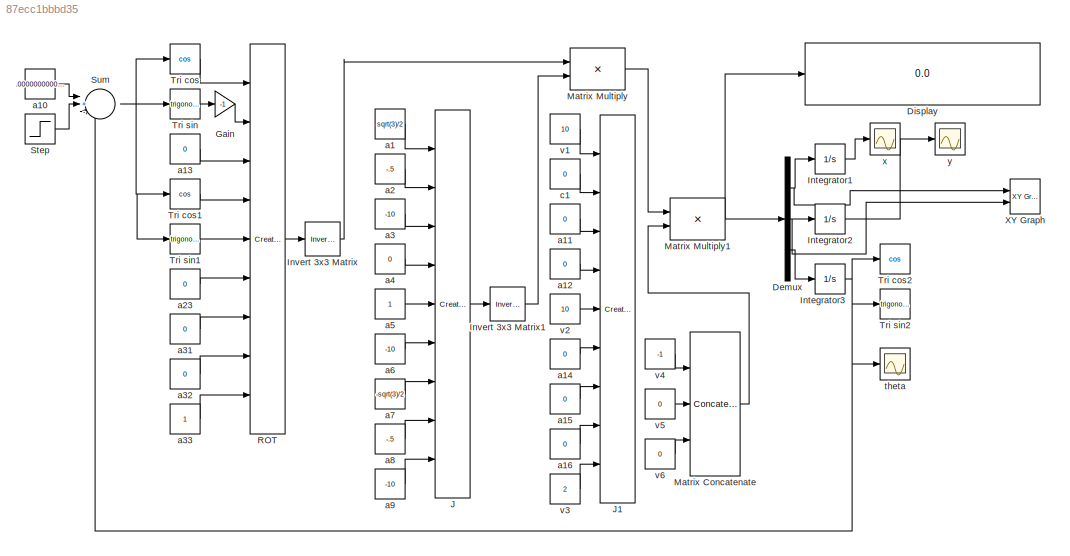
MODEL slx_87ecc1bbbd35
KIND model
CONFIG AbsTol = auto
CONFIG FixedStep = auto
CONFIG MaxStep = auto
CONFIG MinStep = auto
CONFIG RelTol = 1e-3
CONFIG SampleTimeConstraint = Unconstrained
CONFIG Solver = ode45
CONFIG SolverMode = Auto
CONFIG SolverName = ode45
CONFIG StartTime = 0.0
CONFIG StopTime = 10.0
BLOCK [Demux] Demux
  DisplayOption = bar
  Outputs = 3
  Ports = [1, 3]
BLOCK [Display] Display
  Decimation = 1
  Ports = [1]
BLOCK [Gain] Gain
  Gain = -1
  OutDataTypeStr = Inherit: Inherit via internal rule
  ParamDataTypeStr = Inherit: Inherit via internal rule
  SaturateOnIntegerOverflow = off
BLOCK [Integrator] Integrator1
  Ports = [1, 1]
BLOCK [Integrator] Integrator2
  Ports = [1, 1]
BLOCK [Integrator] Integrator3
  Ports = [1, 1]
BLOCK [Reference] Invert 3x3 Matrix  REF=aerolibutil/Invert 
3x3 Matrix
  Ports = [1, 1]
  SourceBlock = aerolibutil/Invert \n3x3 Matrix
  SourceType = Invert 3x3 Matrix
BLOCK [Reference] Invert 3x3 Matrix1  REF=aerolibutil/Invert 
3x3 Matrix
  Ports = [1, 1]
  SourceBlock = aerolibutil/Invert \n3x3 Matrix
  SourceType = Invert 3x3 Matrix
BLOCK [Reference] J  REF=aerolibutil/Create 3x3 Matrix
  Ports = [9, 1]
  SourceBlock = aerolibutil/Create 3x3 Matrix
  SourceType = Create 3x3 Matrix
BLOCK [Reference] J1  REF=aerolibutil/Create 3x3 Matrix
  Ports = [9, 1]
  SourceBlock = aerolibutil/Create 3x3 Matrix
  SourceType = Create 3x3 Matrix
BLOCK [Concatenate] Matrix Concatenate
  Mode = Multidimensional array
  NumInputs = 3
  Ports = [3, 1]
BLOCK [Product] Matrix Multiply
  InputSameDT = off
  Multiplication = Matrix(*)
  OutDataTypeStr = Inherit: Inherit via internal rule
  Ports = [2, 1]
  RndMeth = Floor
  SaturateOnIntegerOverflow = off
BLOCK [Product] Matrix Multiply1
  InputSameDT = off
  Multiplication = Matrix(*)
  OutDataTypeStr = Inherit: Inherit via internal rule
  Ports = [2, 1]
  RndMeth = Floor
  SaturateOnIntegerOverflow = off
BLOCK [Reference] ROT  REF=aerolibutil/Create 3x3 Matrix
  Ports = [9, 1]
  SourceBlock = aerolibutil/Create 3x3 Matrix
  SourceType = Create 3x3 Matrix
BLOCK [Step] Step
  After = 0.00000000000001
  SampleTime = 0
  Time = .00001
BLOCK [Sum] Sum
  IconShape = round
  InputSameDT = off
  Inputs = |+-+
  OutDataTypeStr = Inherit: Inherit via internal rule
  Ports = [3, 1]
  SaturateOnIntegerOverflow = off
BLOCK [Trigonometry] Tri cos
  Operator = cos
  Ports = [1, 1]
BLOCK [Trigonometry] Tri cos1
  Operator = cos
  Ports = [1, 1]
BLOCK [Trigonometry] Tri cos2
  Operator = cos
  Ports = [1, 1]
BLOCK [Trigonometry] Tri sin
  Ports = [1, 1]
BLOCK [Trigonometry] Tri sin1
  Ports = [1, 1]
BLOCK [Trigonometry] Tri sin2
  Ports = [1, 1]
BLOCK [Reference] XY Graph  REF=simulink/Sinks/XY Graph
  Ports = [2]
  SourceBlock = simulink/Sinks/XY Graph
  SourceType = XY scope.
  st = -1
  xmax = 100
  xmin = -100
  ymax = 100
  ymin = -100
BLOCK [Constant] a1
  Value = sqrt(3)/2
BLOCK [Constant] a10
  Value = .00000000000001
BLOCK [Constant] a11
  Value = 0
BLOCK [Constant] a12
  Value = 0
BLOCK [Constant] a13
  Value = 0
BLOCK [Constant] a14
  Value = 0
BLOCK [Constant] a15
  Value = 0
BLOCK [Constant] a16
  Value = 0
BLOCK [Constant] a2
  Value = -.5
BLOCK [Constant] a23
  Value = 0
BLOCK [Constant] a3
  Value = -10
BLOCK [Constant] a31
  Value = 0
BLOCK [Constant] a32
  Value = 0
BLOCK [Constant] a33
BLOCK [Constant] a4
  Value = 0
BLOCK [Constant] a5
BLOCK [Constant] a6
  Value = -10
BLOCK [Constant] a7
  Value = -sqrt(3)/2
BLOCK [Constant] a8
  Value = -.5
BLOCK [Constant] a9
  Value = -10
BLOCK [Constant] c1
  Value = 0
BLOCK [Scope] theta
  DataFormat = StructureWithTime
  Floating = off
  NumInputPorts = 1
  Ports = [1]
  SampleTime = 0
  SaveName = ScopeData2
BLOCK [Constant] v1
  Value = 10
BLOCK [Constant] v2
  Value = 10
BLOCK [Constant] v3
  Value = 2
BLOCK [Constant] v4
  Value = -1
BLOCK [Constant] v5
  Value = 0
BLOCK [Constant] v6
  Value = 0
BLOCK [Scope] x
  DataFormat = StructureWithTime
  Floating = off
  NumInputPorts = 1
  Ports = [1]
  SampleTime = 0
BLOCK [Scope] y
  DataFormat = StructureWithTime
  Floating = off
  NumInputPorts = 1
  Ports = [1]
  SampleTime = 0
  SaveName = ScopeData1
NET Demux:1 -> Integrator1:1, XY Graph:1
NET Demux:2 -> Integrator2:1, XY Graph:2
LINE Demux:3 -> Integrator3:1
LINE Gain:1 -> ROT:2
LINE Integrator1:1 -> x:1
LINE Integrator2:1 -> y:1
NET Integrator3:1 -> Sum:3, Tri cos2:1, Tri sin2:1, theta:1
LINE Invert 3x3 Matrix1:1 -> Matrix Multiply:2
LINE Invert 3x3 Matrix:1 -> Matrix Multiply:1
LINE J:1 -> Invert 3x3 Matrix1:1
LINE Matrix Concatenate:1 -> Matrix Multiply1:2
NET Matrix Multiply1:1 -> Demux:1, Display:1
LINE Matrix Multiply:1 -> Matrix Multiply1:1
LINE ROT:1 -> Invert 3x3 Matrix:1
LINE Step:1 -> Sum:2
NET Sum:1 -> Tri cos1:1, Tri cos:1, Tri sin1:1, Tri sin:1
LINE Tri cos1:1 -> ROT:4
LINE Tri cos:1 -> ROT:1
LINE Tri sin1:1 -> ROT:5
LINE Tri sin:1 -> Gain:1
LINE a10:1 -> Sum:1
LINE a11:1 -> J1:3
LINE a12:1 -> J1:4
LINE a13:1 -> ROT:3
LINE a14:1 -> J1:6
LINE a15:1 -> J1:7
LINE a16:1 -> J1:8
LINE a1:1 -> J:1
LINE a23:1 -> ROT:6
LINE a2:1 -> J:2
LINE a31:1 -> ROT:7
LINE a32:1 -> ROT:8
LINE a33:1 -> ROT:9
LINE a3:1 -> J:3
LINE a4:1 -> J:4
LINE a5:1 -> J:5
LINE a6:1 -> J:6
LINE a7:1 -> J:7
LINE a8:1 -> J:8
LINE a9:1 -> J:9
LINE c1:1 -> J1:2
LINE v1:1 -> J1:1
LINE v2:1 -> J1:5
LINE v3:1 -> J1:9
LINE v4:1 -> Matrix Concatenate:1
LINE v5:1 -> Matrix Concatenate:2
LINE v6:1 -> Matrix Concatenate:3
note: NET lines group one-source signal fan-out (src -> all destinations, sorted); 1:1 wires keep LINE
